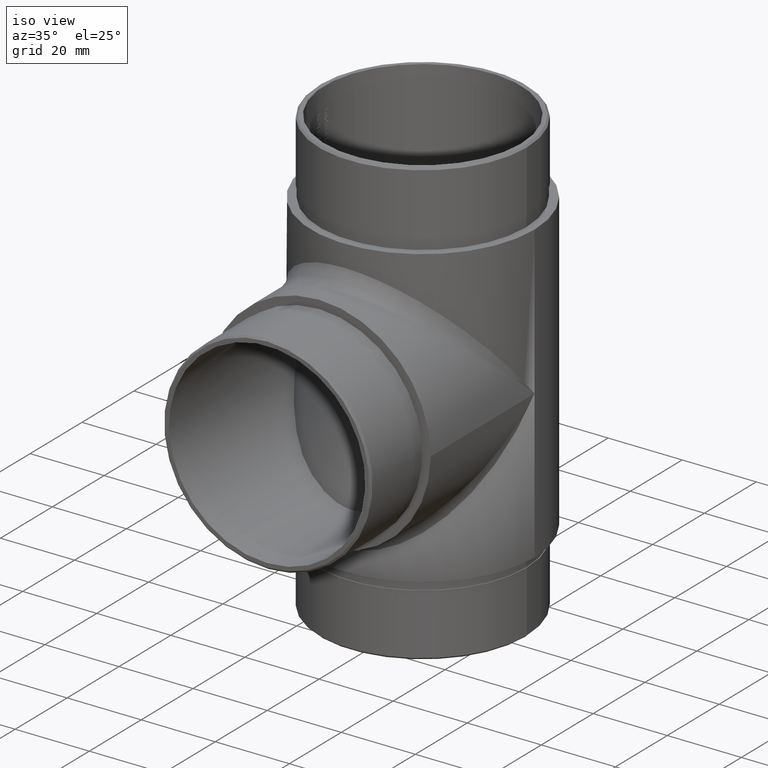
[diagram: clean part render]
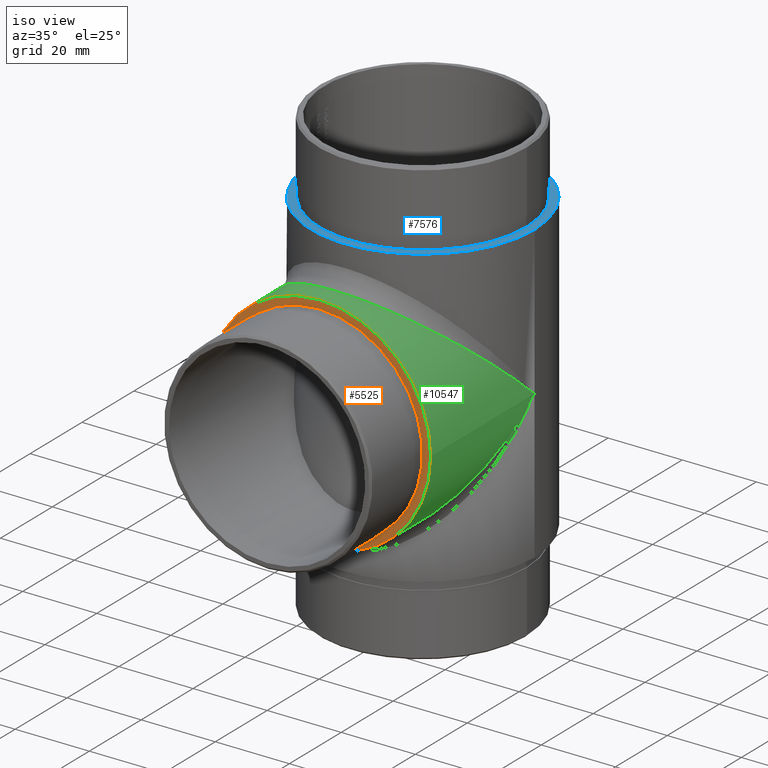
[diagram: same view with three faces highlighted in distinct colors, each labeled with its STEP entity id]
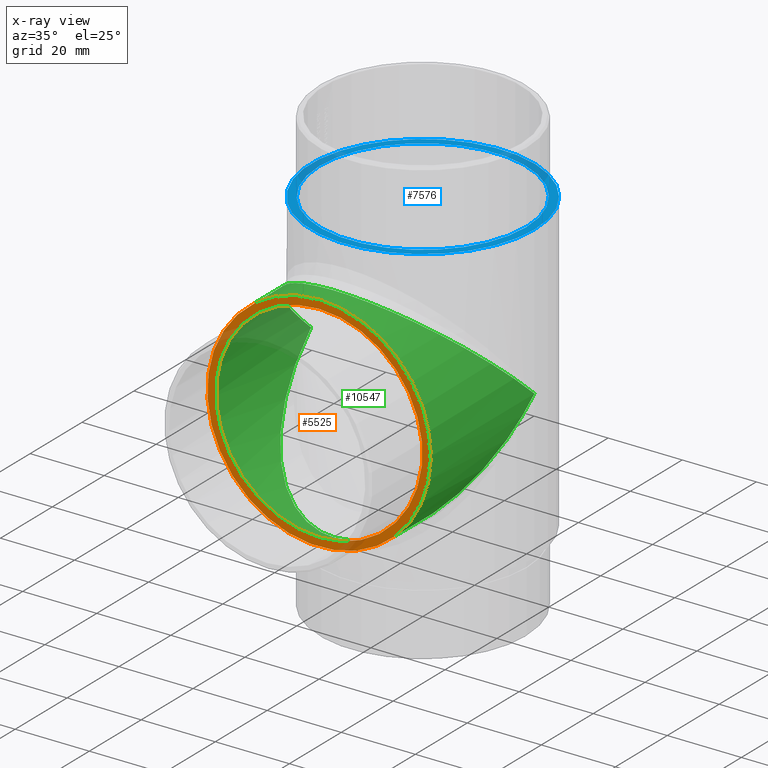
[diagram: x-ray of the same camera — body ghosted, the three highlighted faces saturated]
A machine part, iso view with three faces highlighted in distinct colors.
The next image is the same camera in x-ray (body ghosted, the three faces saturated) — at least one of them is partly hidden behind the body in this view.
Their STEP definitions:

[orange] entity #5525 — the highlighted planar face has unit normal (0, 1, 0).
#380 = CARTESIAN_POINT ( 'NONE',  ( 0.0000000000000000000, 20.00000000000000000, 27.89999999999999900 ) ) ;
#865 = EDGE_CURVE ( 'NONE', #10295, #10295, #2266, .T. ) ;
#1495 = DIRECTION ( 'NONE',  ( 0.0000000000000000000, 0.0000000000000000000, 1.000000000000000000 ) ) ;
#2266 = CIRCLE ( 'NONE', #11701, 27.89999999999999900 ) ;
#2450 = DIRECTION ( 'NONE',  ( 0.0000000000000000000, 1.000000000000000000, 0.0000000000000000000 ) ) ;
#2495 = CARTESIAN_POINT ( 'NONE',  ( 0.0000000000000000000, 20.00000000000000000, 0.0000000000000000000 ) ) ;
#2615 = CARTESIAN_POINT ( 'NONE',  ( 0.0000000000000000000, 20.00000000000000000, 0.0000000000000000000 ) ) ;
#3629 = AXIS2_PLACEMENT_3D ( 'NONE', #2495, #2450, #8380 ) ;
#3948 = EDGE_CURVE ( 'NONE', #5751, #5751, #6628, .T. ) ;
#4195 = FACE_BOUND ( 'NONE', #6421, .T. ) ;
#5525 = ADVANCED_FACE ( 'NONE', ( #7829, #4195 ), #7373, .F. ) ;
#5751 = VERTEX_POINT ( 'NONE', #7024 ) ;
#6421 = EDGE_LOOP ( 'NONE', ( #8544 ) ) ;
#6628 = CIRCLE ( 'NONE', #12382, 30.14999999999999900 ) ;
#7024 = CARTESIAN_POINT ( 'NONE',  ( 0.0000000000000000000, 20.00000000000000000, 30.14999999999999900 ) ) ;
#7093 = DIRECTION ( 'NONE',  ( -0.0000000000000000000, -1.000000000000000000, -0.0000000000000000000 ) ) ;
#7192 = EDGE_LOOP ( 'NONE', ( #10068 ) ) ;
#7340 = DIRECTION ( 'NONE',  ( 0.0000000000000000000, 1.000000000000000000, 0.0000000000000000000 ) ) ;
#7373 = PLANE ( 'NONE',  #3629 ) ;
#7829 = FACE_OUTER_BOUND ( 'NONE', #7192, .T. ) ;
#8380 = DIRECTION ( 'NONE',  ( 0.0000000000000000000, -0.0000000000000000000, 1.000000000000000000 ) ) ;
#8544 = ORIENTED_EDGE ( 'NONE', *, *, #865, .F. ) ;
#10068 = ORIENTED_EDGE ( 'NONE', *, *, #3948, .F. ) ;
#10295 = VERTEX_POINT ( 'NONE', #380 ) ;
#11004 = DIRECTION ( 'NONE',  ( 0.0000000000000000000, 0.0000000000000000000, 1.000000000000000000 ) ) ;
#11701 = AXIS2_PLACEMENT_3D ( 'NONE', #11870, #7093, #11004 ) ;
#11870 = CARTESIAN_POINT ( 'NONE',  ( 0.0000000000000000000, 20.00000000000000000, 0.0000000000000000000 ) ) ;
#12382 = AXIS2_PLACEMENT_3D ( 'NONE', #2615, #7340, #1495 ) ;

[blue] entity #7576 — the highlighted planar face has unit normal (0, 0, 1).
#295 = VERTEX_POINT ( 'NONE', #12030 ) ;
#677 = EDGE_CURVE ( 'NONE', #3790, #3790, #6503, .T. ) ;
#678 = AXIS2_PLACEMENT_3D ( 'NONE', #10521, #848, #9462 ) ;
#763 = DIRECTION ( 'NONE',  ( 0.0000000000000000000, 0.0000000000000000000, 1.000000000000000000 ) ) ;
#848 = DIRECTION ( 'NONE',  ( 0.0000000000000000000, 0.0000000000000000000, 1.000000000000000000 ) ) ;
#1020 = EDGE_LOOP ( 'NONE', ( #12438 ) ) ;
#1365 = CARTESIAN_POINT ( 'NONE',  ( 27.90000000000000200, 60.00000000000000000, 40.00000000000000000 ) ) ;
#2338 = PLANE ( 'NONE',  #10136 ) ;
#3602 = CIRCLE ( 'NONE', #12302, 30.15000000000000200 ) ;
#3790 = VERTEX_POINT ( 'NONE', #1365 ) ;
#4874 = EDGE_CURVE ( 'NONE', #295, #295, #3602, .T. ) ;
#4936 = FACE_BOUND ( 'NONE', #1020, .T. ) ;
#6503 = CIRCLE ( 'NONE', #678, 27.90000000000000200 ) ;
#7576 = ADVANCED_FACE ( 'NONE', ( #7644, #4936 ), #2338, .T. ) ;
#7644 = FACE_OUTER_BOUND ( 'NONE', #11864, .T. ) ;
#8059 = DIRECTION ( 'NONE',  ( 1.000000000000000000, 0.0000000000000000000, -0.0000000000000000000 ) ) ;
#8152 = DIRECTION ( 'NONE',  ( 0.0000000000000000000, 0.0000000000000000000, 1.000000000000000000 ) ) ;
#9421 = CARTESIAN_POINT ( 'NONE',  ( 0.0000000000000000000, 60.00000000000000000, 40.00000000000000000 ) ) ;
#9462 = DIRECTION ( 'NONE',  ( 1.000000000000000000, 0.0000000000000000000, 0.0000000000000000000 ) ) ;
#10125 = CARTESIAN_POINT ( 'NONE',  ( 0.0000000000000000000, 60.00000000000000000, 40.00000000000000000 ) ) ;
#10136 = AXIS2_PLACEMENT_3D ( 'NONE', #10125, #8152, #8059 ) ;
#10364 = DIRECTION ( 'NONE',  ( 1.000000000000000000, 0.0000000000000000000, 0.0000000000000000000 ) ) ;
#10521 = CARTESIAN_POINT ( 'NONE',  ( 0.0000000000000000000, 60.00000000000000000, 40.00000000000000000 ) ) ;
#11858 = ORIENTED_EDGE ( 'NONE', *, *, #4874, .T. ) ;
#11864 = EDGE_LOOP ( 'NONE', ( #11858 ) ) ;
#12030 = CARTESIAN_POINT ( 'NONE',  ( 30.15000000000000200, 60.00000000000000000, 40.00000000000000000 ) ) ;
#12302 = AXIS2_PLACEMENT_3D ( 'NONE', #9421, #763, #10364 ) ;
#12438 = ORIENTED_EDGE ( 'NONE', *, *, #677, .F. ) ;

[green] entity #10547 — the highlighted cylindrical surface (bore or boss wall) has radius 30.15 mm, axis along (-0, -1, -0).
#250 = CARTESIAN_POINT ( 'NONE',  ( 30.14999999999999500, -8.300000000001418200, -60.29999999999999000 ) ) ;
#486 = CYLINDRICAL_SURFACE ( 'NONE', #6086, 30.14999999999999900 ) ;
#1073 = CARTESIAN_POINT ( 'NONE',  ( 30.15000000000000200, 60.00000000000113700, 0.0000000000000000000 ) ) ;
#1109 = VERTEX_POINT ( 'NONE', #1073 ) ;
#1411 = ORIENTED_EDGE ( 'NONE', *, *, #8702, .T. ) ;
#1495 = DIRECTION ( 'NONE',  ( 0.0000000000000000000, 0.0000000000000000000, 1.000000000000000000 ) ) ;
#1792 =( BOUNDED_CURVE ( )  B_SPLINE_CURVE ( 3, ( #4932, #7881, #250, #11769 ),
 .UNSPECIFIED., .F., .T. ) 
 B_SPLINE_CURVE_WITH_KNOTS ( ( 4, 4 ),
 ( 4.712388980384689700, 7.853981633974482800 ),
 .UNSPECIFIED. ) 
 CURVE ( )  GEOMETRIC_REPRESENTATION_ITEM ( )  RATIONAL_B_SPLINE_CURVE ( ( 1.000000000000000000, 0.3333333333333333700, 0.3333333333333333700, 1.000000000000000000 ) ) 
 REPRESENTATION_ITEM ( '' )  );
#2131 = CARTESIAN_POINT ( 'NONE',  ( -30.15000000000000200, 60.00000000000113700, 0.0000000000000000000 ) ) ;
#2134 = FACE_OUTER_BOUND ( 'NONE', #5230, .T. ) ;
#2608 = FACE_OUTER_BOUND ( 'NONE', #11132, .T. ) ;
#2615 = CARTESIAN_POINT ( 'NONE',  ( 0.0000000000000000000, 20.00000000000000000, 0.0000000000000000000 ) ) ;
#2817 = DIRECTION ( 'NONE',  ( 0.0000000000000000000, 0.0000000000000000000, -1.000000000000000000 ) ) ;
#3429 = EDGE_CURVE ( 'NONE', #7260, #1109, #1792, .T. ) ;
#3948 = EDGE_CURVE ( 'NONE', #5751, #5751, #6628, .T. ) ;
#4530 = ORIENTED_EDGE ( 'NONE', *, *, #3429, .T. ) ;
#4932 = CARTESIAN_POINT ( 'NONE',  ( -30.15000000000000200, 60.00000000000113700, 0.0000000000000000000 ) ) ;
#5230 = EDGE_LOOP ( 'NONE', ( #1411, #4530 ) ) ;
#5545 = CARTESIAN_POINT ( 'NONE',  ( 30.15000000000000200, 60.00000000000113700, 0.0000000000000000000 ) ) ;
#5642 = CARTESIAN_POINT ( 'NONE',  ( 0.0000000000000000000, 500000.0000000000600, 0.0000000000000000000 ) ) ;
#5751 = VERTEX_POINT ( 'NONE', #7024 ) ;
#6086 = AXIS2_PLACEMENT_3D ( 'NONE', #5642, #12421, #2817 ) ;
#6628 = CIRCLE ( 'NONE', #12382, 30.14999999999999900 ) ;
#7024 = CARTESIAN_POINT ( 'NONE',  ( 0.0000000000000000000, 20.00000000000000000, 30.14999999999999900 ) ) ;
#7260 = VERTEX_POINT ( 'NONE', #2131 ) ;
#7340 = DIRECTION ( 'NONE',  ( 0.0000000000000000000, 1.000000000000000000, 0.0000000000000000000 ) ) ;
#7881 = CARTESIAN_POINT ( 'NONE',  ( -30.15000000000000600, -8.300000000001411100, -60.29999999999999000 ) ) ;
#8586 = ORIENTED_EDGE ( 'NONE', *, *, #3948, .T. ) ;
#8702 = EDGE_CURVE ( 'NONE', #1109, #7260, #9306, .T. ) ;
#9306 =( BOUNDED_CURVE ( )  B_SPLINE_CURVE ( 3, ( #5545, #10241, #10281, #11286 ),
 .UNSPECIFIED., .F., .F. ) 
 B_SPLINE_CURVE_WITH_KNOTS ( ( 4, 4 ),
 ( 1.570796326794896800, 4.712388980384689700 ),
 .UNSPECIFIED. ) 
 CURVE ( )  GEOMETRIC_REPRESENTATION_ITEM ( )  RATIONAL_B_SPLINE_CURVE ( ( 1.000000000000000000, 0.3333333333333333700, 0.3333333333333333700, 1.000000000000000000 ) ) 
 REPRESENTATION_ITEM ( '' )  );
#10241 = CARTESIAN_POINT ( 'NONE',  ( 30.14999999999998400, -8.300000000001423600, 60.29999999999999000 ) ) ;
#10281 = CARTESIAN_POINT ( 'NONE',  ( -30.14999999999998400, -8.300000000001423600, 60.29999999999999000 ) ) ;
#10547 = ADVANCED_FACE ( 'NONE', ( #2608, #2134 ), #486, .T. ) ;
#11132 = EDGE_LOOP ( 'NONE', ( #8586 ) ) ;
#11286 = CARTESIAN_POINT ( 'NONE',  ( -30.15000000000000200, 60.00000000000113700, 0.0000000000000000000 ) ) ;
#11769 = CARTESIAN_POINT ( 'NONE',  ( 30.15000000000000200, 60.00000000000113700, 0.0000000000000000000 ) ) ;
#12382 = AXIS2_PLACEMENT_3D ( 'NONE', #2615, #7340, #1495 ) ;
#12421 = DIRECTION ( 'NONE',  ( -0.0000000000000000000, -1.000000000000000000, -0.0000000000000000000 ) ) ;